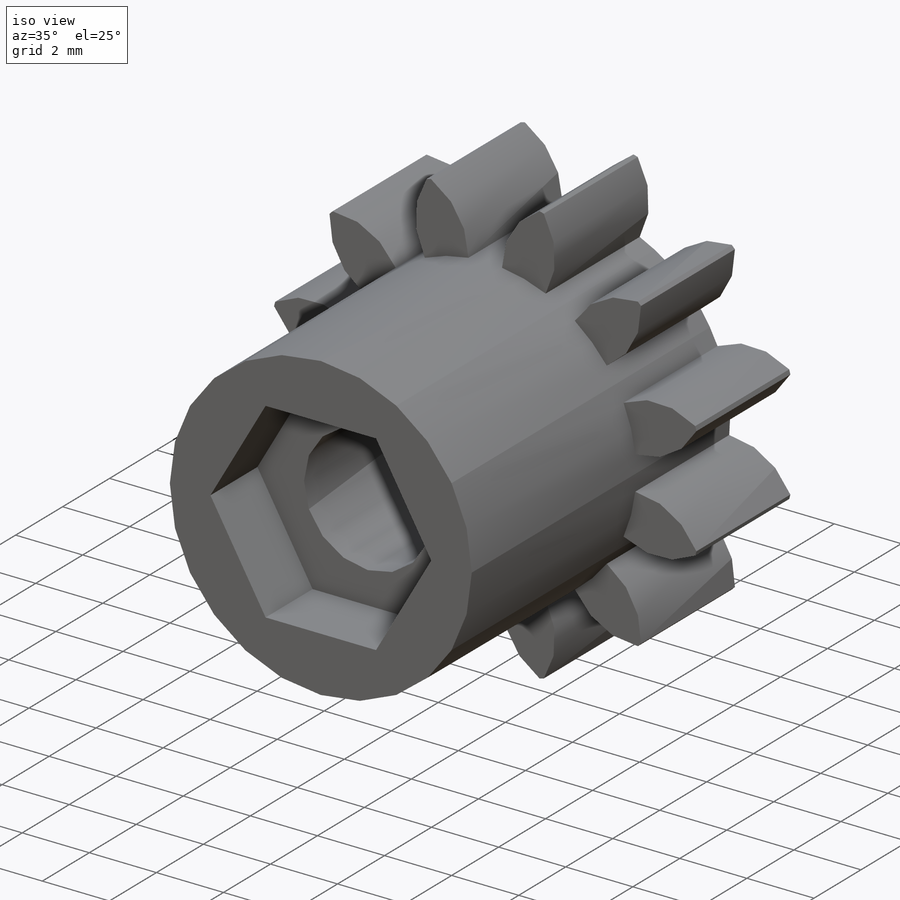
[diagram: iso view]
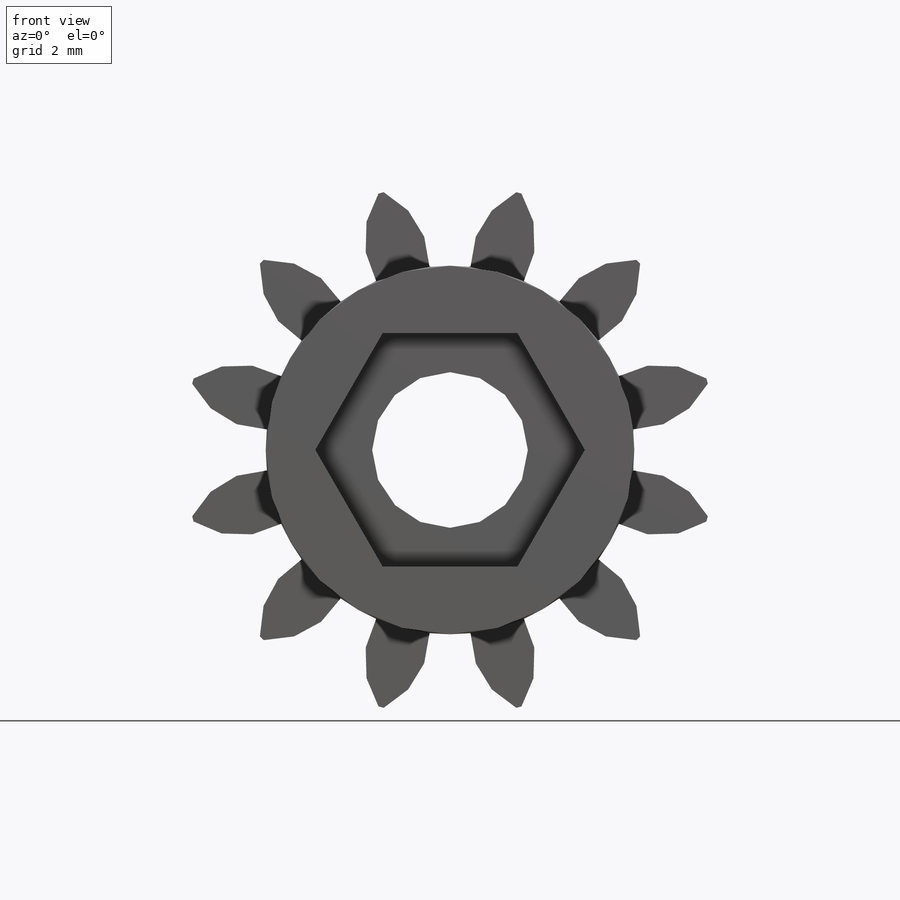
[diagram: front view]
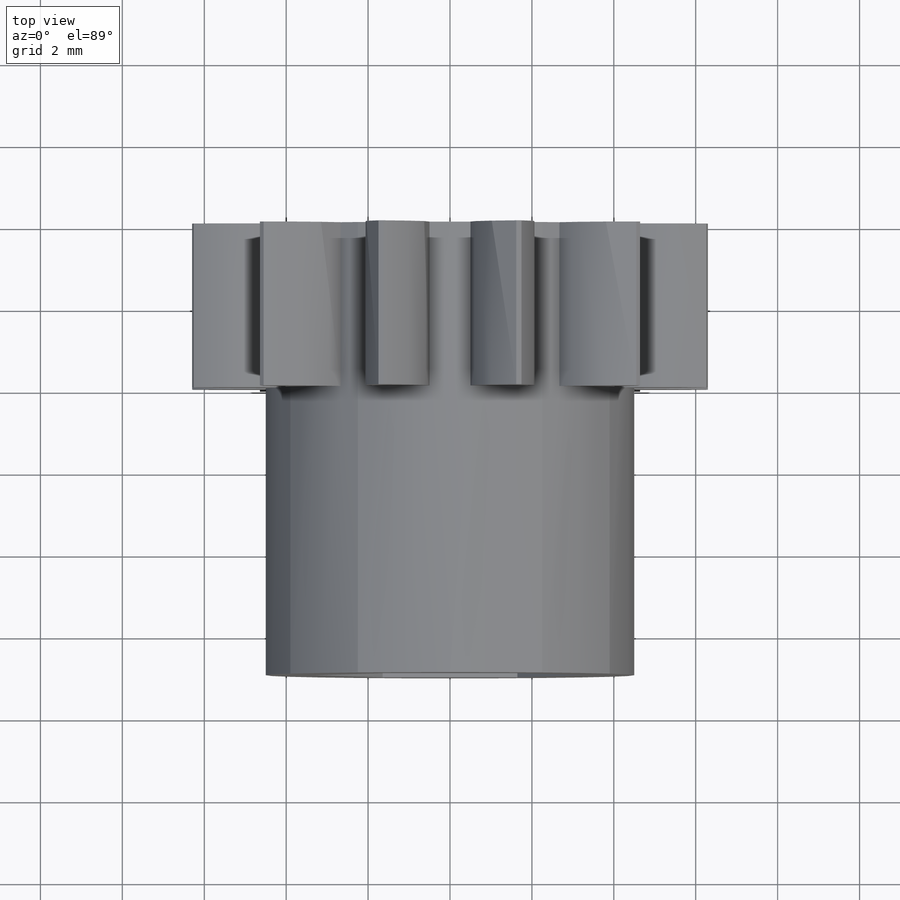
[diagram: top view]
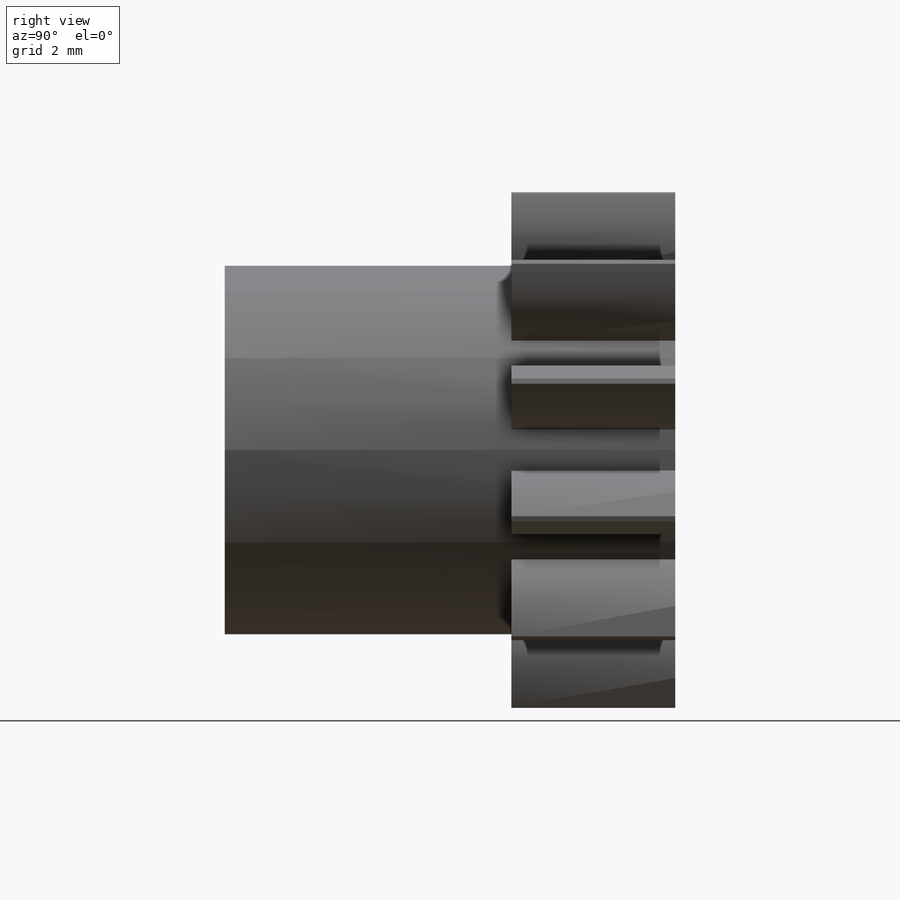
[diagram: right view]
SOLIDWORKS PART (.sldprt)
format: sldprt  version: not decoded by parser v0  size: 321,024 bytes
history: native  units: mm
features: sketch x6, cut_extrude x3, extrude x2, material x1, pattern_circular x1 (+13 scaffold rows collapsed)
feature tree (26):
  scaffold x13  (default folders/planes/origin — collapsed)
  material  "Material <not specified>"
  sketch  "Sketch1"  dims[D1=7.0mm]
  extrude  "Boss-Extrude1"  Depth=4mm
  sketch  "Sketch4"  dims[c1.D1=0.15mm c1.D2=0.15mm c2.D1=0.15mm c2.D2=0.15mm c3.D1=2.5mm]
  cut_extrude  "Cut-Extrude2"  [1 undecoded]
  pattern_circular  "CirPattern2"  Count=12 Angle=360deg
  sketch  "Sketch10"  dims[c1.D1=0.15mm c1.D2=0.15mm c2.D1=~5.047983mm]
  sketch  "Sketch11"  dims[D1=4.0mm]
  extrude  "Boss-Extrude2"  Depth=11mm
  sketch  "Sketch12"  dims[D1=5.7mm]
  cut_extrude  "Cut-Extrude3"  Depth=2mm
  sketch  "Sketch13"  dims[D1=3.2mm]
  cut_extrude  "Cut-Extrude4"  [1 undecoded]
decode coverage: 10 of 12 modeling features carry decoded parameters
note: ~ marks probable driven/reference dimensions
note: 2 parameter values undecoded
note: suppression state not decoded; provenance and decode notes live in map.json
